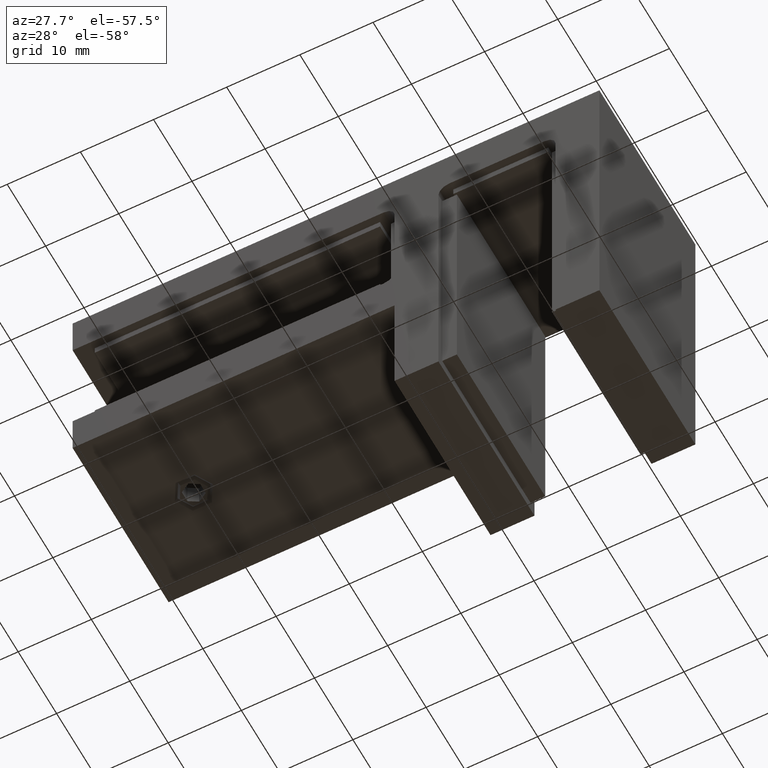
[diagram: clean part render]
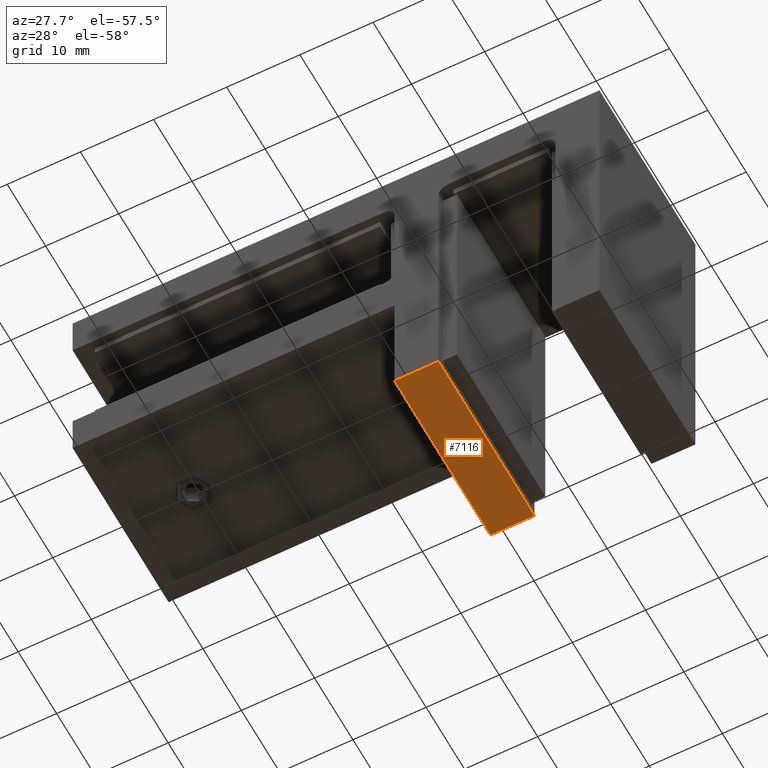
[diagram: same view with one face highlighted and labeled with its STEP entity id]
A machine part, auxiliary view. The second image highlights one B-rep face of the part: STEP entity #7116.
In plain terms, the highlighted planar face has unit normal (0, 0, 1).
Its self-contained STEP definition (entity closure, byte-faithful):
#14 = VECTOR ( 'NONE', #16371, 1000.000000000000000 ) ;
#528 = LINE ( 'NONE', #1440, #10704 ) ;
#844 = EDGE_CURVE ( 'NONE', #21272, #16644, #528, .T. ) ;
#1087 = PLANE ( 'NONE',  #9829 ) ;
#1352 = CARTESIAN_POINT ( 'NONE',  ( 13.99999999999999822, -12.50000000000000000, -22.50000000000000000 ) ) ;
#1365 = LINE ( 'NONE', #1352, #9433 ) ;
#1440 = CARTESIAN_POINT ( 'NONE',  ( 13.99999999999999822, 12.50000000000000000, -22.50000000000000000 ) ) ;
#1617 = EDGE_CURVE ( 'NONE', #21272, #20543, #7043, .T. ) ;
#1835 = VERTEX_POINT ( 'NONE', #6138 ) ;
#2488 = CARTESIAN_POINT ( 'NONE',  ( 13.99999999999999822, -12.50000000000000000, -22.50000000000000000 ) ) ;
#4615 = DIRECTION ( 'NONE',  ( 1.000000000000000000, 0.000000000000000000, -0.000000000000000000 ) ) ;
#4707 = CARTESIAN_POINT ( 'NONE',  ( 7.999999999999998224, 12.50000000000000000, -22.50000000000000000 ) ) ;
#5329 = EDGE_CURVE ( 'NONE', #16644, #1835, #18790, .T. ) ;
#5918 = DIRECTION ( 'NONE',  ( -0.000000000000000000, -1.000000000000000000, -0.000000000000000000 ) ) ;
#6138 = CARTESIAN_POINT ( 'NONE',  ( 7.999999999999998224, -12.50000000000000000, -22.50000000000000000 ) ) ;
#7043 = LINE ( 'NONE', #7591, #18013 ) ;
#7116 = ADVANCED_FACE ( 'NONE', ( #7486 ), #1087, .F. ) ;
#7486 = FACE_OUTER_BOUND ( 'NONE', #15729, .T. ) ;
#7591 = CARTESIAN_POINT ( 'NONE',  ( 13.99999999999999822, 12.50000000000000000, -22.50000000000000000 ) ) ;
#7914 = DIRECTION ( 'NONE',  ( -1.000000000000000000, 0.000000000000000000, 0.000000000000000000 ) ) ;
#9302 = ORIENTED_EDGE ( 'NONE', *, *, #11045, .T. ) ;
#9433 = VECTOR ( 'NONE', #7914, 1000.000000000000000 ) ;
#9829 = AXIS2_PLACEMENT_3D ( 'NONE', #17876, #16194, #4615 ) ;
#10704 = VECTOR ( 'NONE', #16172, 1000.000000000000000 ) ;
#11045 = EDGE_CURVE ( 'NONE', #20543, #1835, #1365, .T. ) ;
#11268 = ORIENTED_EDGE ( 'NONE', *, *, #844, .F. ) ;
#11662 = ORIENTED_EDGE ( 'NONE', *, *, #1617, .T. ) ;
#15729 = EDGE_LOOP ( 'NONE', ( #9302, #16544, #11268, #11662 ) ) ;
#16172 = DIRECTION ( 'NONE',  ( -1.000000000000000000, 0.000000000000000000, 0.000000000000000000 ) ) ;
#16194 = DIRECTION ( 'NONE',  ( 0.000000000000000000, -0.000000000000000000, 1.000000000000000000 ) ) ;
#16371 = DIRECTION ( 'NONE',  ( -0.000000000000000000, -1.000000000000000000, -0.000000000000000000 ) ) ;
#16544 = ORIENTED_EDGE ( 'NONE', *, *, #5329, .F. ) ;
#16644 = VERTEX_POINT ( 'NONE', #19176 ) ;
#17876 = CARTESIAN_POINT ( 'NONE',  ( 13.99999999999999822, 12.50000000000000000, -22.50000000000000000 ) ) ;
#18013 = VECTOR ( 'NONE', #5918, 1000.000000000000000 ) ;
#18790 = LINE ( 'NONE', #4707, #14 ) ;
#19176 = CARTESIAN_POINT ( 'NONE',  ( 7.999999999999998224, 12.50000000000000000, -22.50000000000000000 ) ) ;
#20543 = VERTEX_POINT ( 'NONE', #2488 ) ;
#21046 = CARTESIAN_POINT ( 'NONE',  ( 13.99999999999999822, 12.50000000000000000, -22.50000000000000000 ) ) ;
#21272 = VERTEX_POINT ( 'NONE', #21046 ) ;